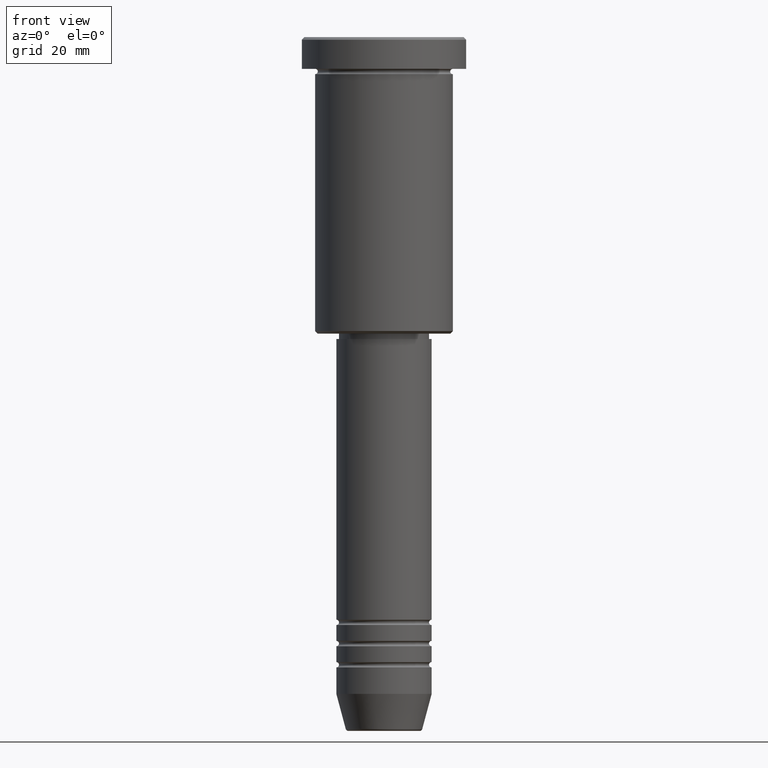
[diagram: clean part render]
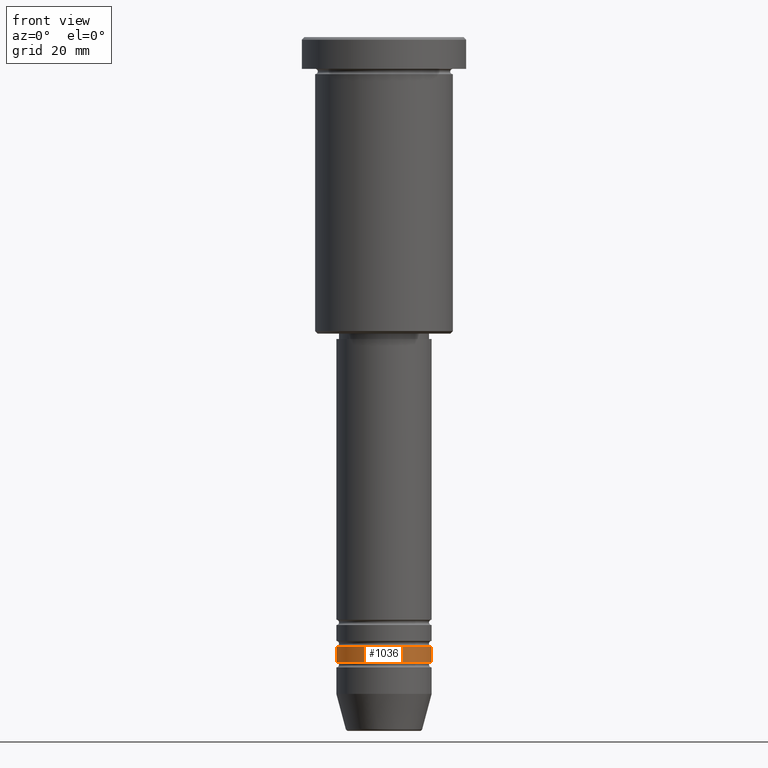
[diagram: same view with one face highlighted and labeled with its STEP entity id]
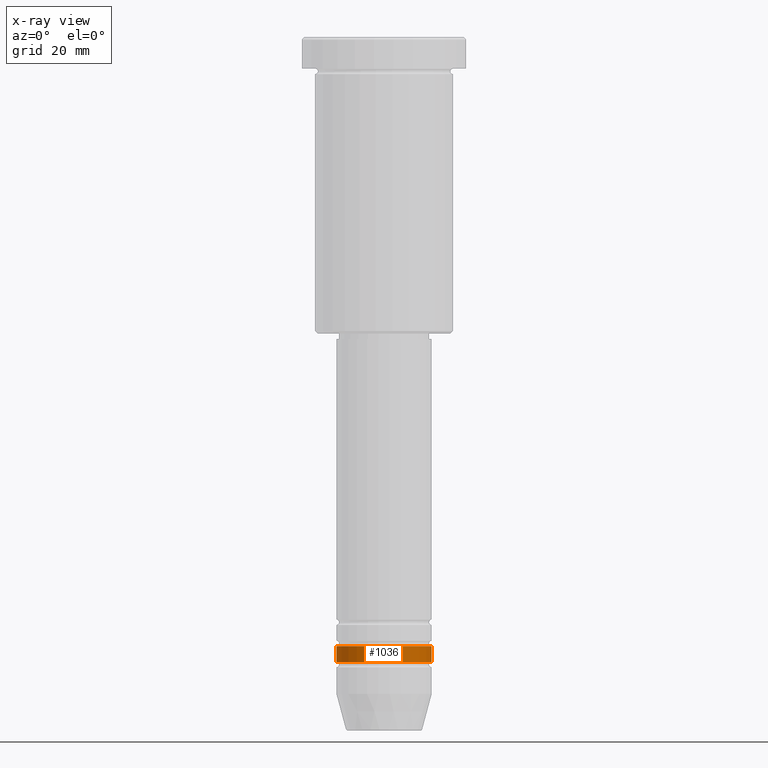
[diagram: x-ray of the same camera — body ghosted, the highlighted face saturated]
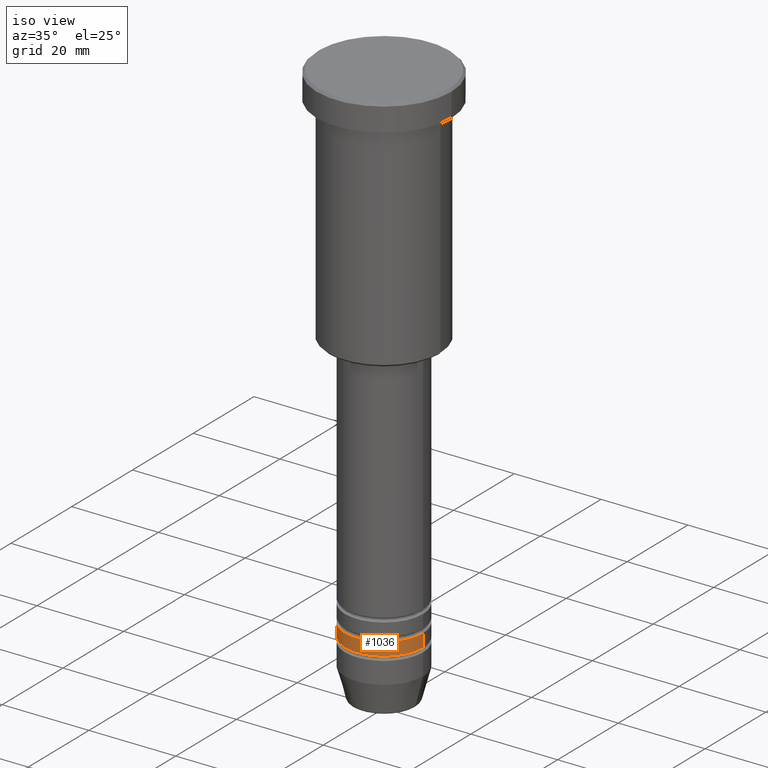
[diagram: same view with one face highlighted and labeled with its STEP entity id]
A machine part, front view. The second image highlights one B-rep face of the part: STEP entity #1036.
The next image is the same camera in x-ray: the body ghosted, the highlighted face saturated — about 0% of this face is hidden behind the body in this view.
A second angle (iso view) of the same face is appended — the face is thin or edge-on in the first view.
In plain terms, the highlighted cylindrical surface (partial cylindrical patch) has radius 9 mm, axis along (-0, -0, 1).
Its self-contained STEP definition (entity closure, byte-faithful):
#7 = ORIENTED_EDGE ( 'NONE', *, *, #855, .F. ) ;
#29 = DIRECTION ( 'NONE',  ( -0.000000000000000000, -0.000000000000000000, 1.000000000000000000 ) ) ;
#31 = CARTESIAN_POINT ( 'NONE',  ( -9.000000000000000000, 1.102182119232617714E-15, -114.9999999999998863 ) ) ;
#46 = EDGE_CURVE ( 'NONE', #558, #306, #1106, .T. ) ;
#52 = FACE_OUTER_BOUND ( 'NONE', #929, .T. ) ;
#53 = CYLINDRICAL_SURFACE ( 'NONE', #724, 9.000000000000001776 ) ;
#87 = LINE ( 'NONE', #1001, #1049 ) ;
#99 = AXIS2_PLACEMENT_3D ( 'NONE', #379, #562, #1124 ) ;
#101 = CIRCLE ( 'NONE', #1010, 9.000000000000000000 ) ;
#130 = VERTEX_POINT ( 'NONE', #748 ) ;
#155 = DIRECTION ( 'NONE',  ( -0.000000000000000000, -0.000000000000000000, 1.000000000000000000 ) ) ;
#176 = ORIENTED_EDGE ( 'NONE', *, *, #325, .T. ) ;
#306 = VERTEX_POINT ( 'NONE', #810 ) ;
#325 = EDGE_CURVE ( 'NONE', #306, #130, #87, .T. ) ;
#377 = ORIENTED_EDGE ( 'NONE', *, *, #860, .F. ) ;
#379 = CARTESIAN_POINT ( 'NONE',  ( 0.000000000000000000, 0.000000000000000000, -117.9999999999998863 ) ) ;
#498 = VECTOR ( 'NONE', #155, 1000.000000000000000 ) ;
#500 = CARTESIAN_POINT ( 'NONE',  ( 0.000000000000000000, 0.000000000000000000, 0.000000000000000000 ) ) ;
#507 = CARTESIAN_POINT ( 'NONE',  ( 0.000000000000000000, 0.000000000000000000, -114.9999999999998863 ) ) ;
#558 = VERTEX_POINT ( 'NONE', #811 ) ;
#562 = DIRECTION ( 'NONE',  ( -0.000000000000000000, -0.000000000000000000, 1.000000000000000000 ) ) ;
#599 = LINE ( 'NONE', #969, #498 ) ;
#656 = VERTEX_POINT ( 'NONE', #31 ) ;
#724 = AXIS2_PLACEMENT_3D ( 'NONE', #500, #29, #845 ) ;
#748 = CARTESIAN_POINT ( 'NONE',  ( 9.000000000000000000, 0.000000000000000000, -114.9999999999998863 ) ) ;
#810 = CARTESIAN_POINT ( 'NONE',  ( 9.000000000000001776, 0.000000000000000000, -117.9999999999998863 ) ) ;
#811 = CARTESIAN_POINT ( 'NONE',  ( -9.000000000000001776, 1.102182119232617911E-15, -117.9999999999998863 ) ) ;
#826 = DIRECTION ( 'NONE',  ( -0.000000000000000000, -0.000000000000000000, 1.000000000000000000 ) ) ;
#845 = DIRECTION ( 'NONE',  ( 1.000000000000000000, 0.000000000000000000, 0.000000000000000000 ) ) ;
#855 = EDGE_CURVE ( 'NONE', #656, #130, #101, .T. ) ;
#860 = EDGE_CURVE ( 'NONE', #558, #656, #599, .T. ) ;
#875 = DIRECTION ( 'NONE',  ( -0.000000000000000000, -0.000000000000000000, 1.000000000000000000 ) ) ;
#929 = EDGE_LOOP ( 'NONE', ( #377, #1002, #176, #7 ) ) ;
#969 = CARTESIAN_POINT ( 'NONE',  ( -9.000000000000001776, 1.102182119232617911E-15, 0.000000000000000000 ) ) ;
#1001 = CARTESIAN_POINT ( 'NONE',  ( 9.000000000000001776, 0.000000000000000000, 0.000000000000000000 ) ) ;
#1002 = ORIENTED_EDGE ( 'NONE', *, *, #46, .T. ) ;
#1010 = AXIS2_PLACEMENT_3D ( 'NONE', #507, #875, #1062 ) ;
#1036 = ADVANCED_FACE ( 'NONE', ( #52 ), #53, .T. ) ;
#1049 = VECTOR ( 'NONE', #826, 1000.000000000000000 ) ;
#1062 = DIRECTION ( 'NONE',  ( 1.000000000000000000, 0.000000000000000000, 0.000000000000000000 ) ) ;
#1106 = CIRCLE ( 'NONE', #99, 9.000000000000001776 ) ;
#1124 = DIRECTION ( 'NONE',  ( 1.000000000000000000, 0.000000000000000000, 0.000000000000000000 ) ) ;